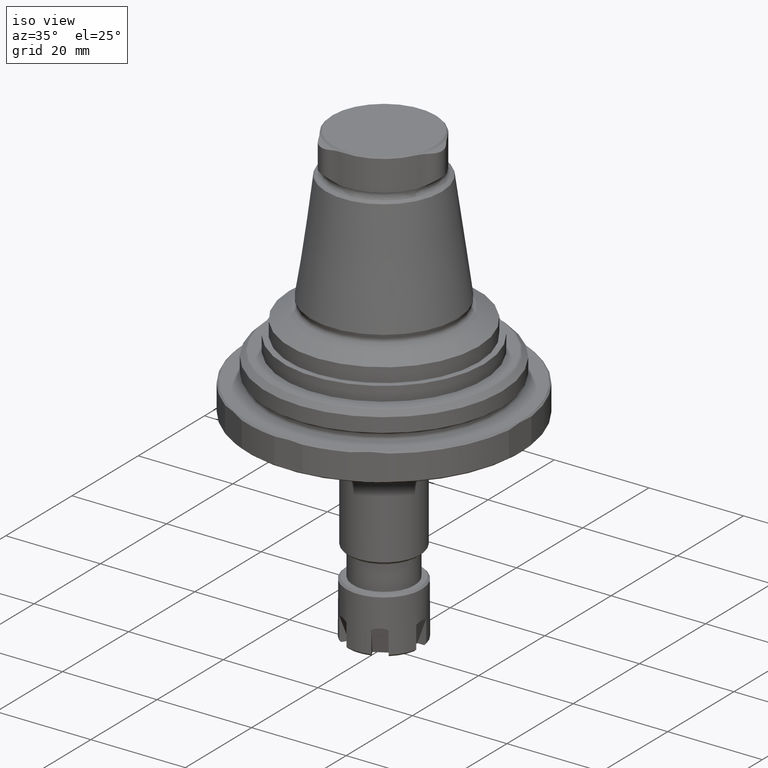
[diagram: clean part render]
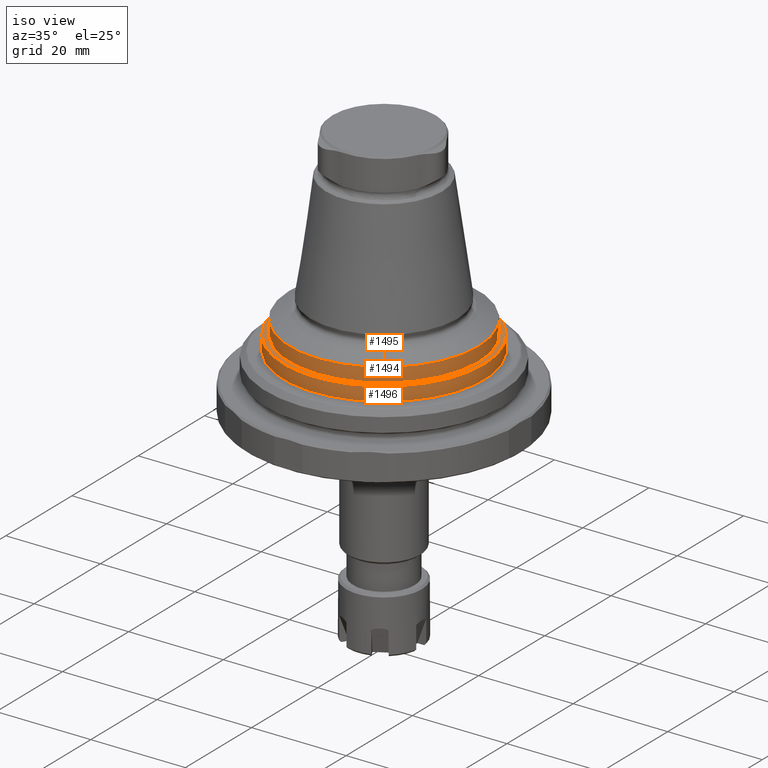
[diagram: same view with one multi-face feature highlighted, each face labeled with its STEP entity id]
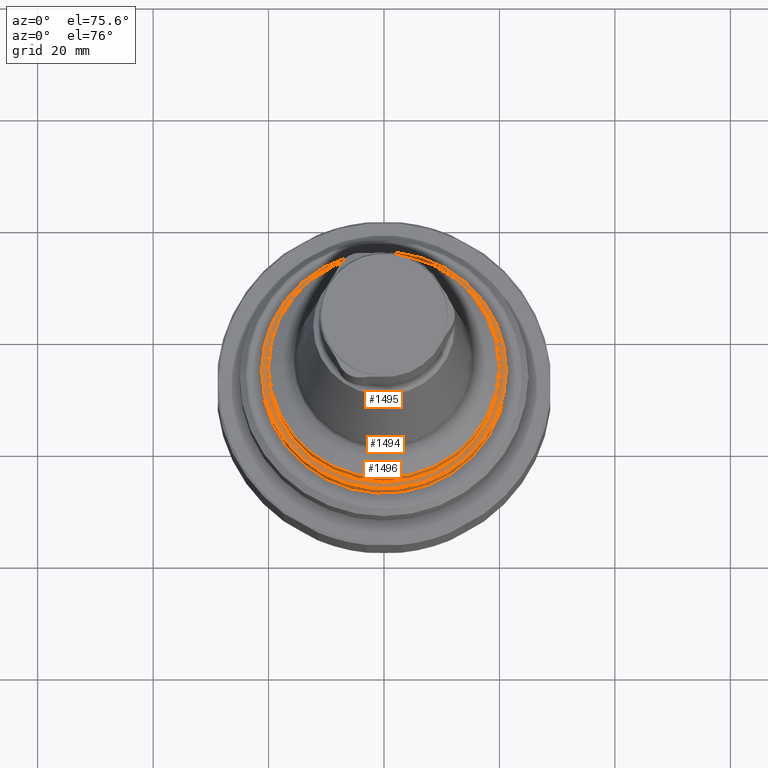
[diagram: same view with one multi-face feature highlighted, each face labeled with its STEP entity id]
A machine part, iso view. The highlighted faces form ONE feature: a stepped (counterbored) hole: 2 coaxial cylindrical walls of radii 20 -> 21.2 mm joined by 1 annular planar shoulder face(s). The faces share edges in the B-rep.
A second angle (auxiliary view) of the same feature is appended — it is thin or edge-on in the first view.
Their STEP definitions:
[1] entity #1496 (Cylinder):
#242=CYLINDRICAL_SURFACE('',#1659,21.2);
#560=ORIENTED_EDGE('',*,*,#831,.T.);
#561=ORIENTED_EDGE('',*,*,#832,.T.);
#831=EDGE_CURVE('',#994,#994,#1087,.T.);
#832=EDGE_CURVE('',#995,#995,#1088,.T.);
#994=VERTEX_POINT('',#2580);
#995=VERTEX_POINT('',#2583);
#1087=CIRCLE('',#1658,21.2);
#1088=CIRCLE('',#1660,21.2);
#1205=EDGE_LOOP('',(#560));
#1206=EDGE_LOOP('',(#561));
#1343=FACE_BOUND('',#1205,.T.);
#1344=FACE_BOUND('',#1206,.T.);
#1496=ADVANCED_FACE('',(#1343,#1344),#242,.T.);
#1658=AXIS2_PLACEMENT_3D('',#2579,#2010,#2011);
#1659=AXIS2_PLACEMENT_3D('',#2581,#2012,#2013);
#1660=AXIS2_PLACEMENT_3D('',#2582,#2014,#2015);
#2010=DIRECTION('',(1.06830816923893E-16,-5.86246862035713E-17,-1.));
#2011=DIRECTION('',(1.,-6.12303176911188E-17,1.0683081361517E-16));
#2012=DIRECTION('',(-1.06830816923893E-16,-2.60563148754756E-18,1.));
#2013=DIRECTION('',(-1.,6.12303176911188E-17,-1.0683081361517E-16));
#2014=DIRECTION('',(-1.06830816923893E-16,-6.38359491786664E-17,1.));
#2015=DIRECTION('',(-1.,6.12303176911188E-17,-1.0683081361517E-16));
#2579=CARTESIAN_POINT('',(4.55024333403639E-15,-9.1197102064168E-18,7.99999999999999));
#2580=CARTESIAN_POINT('',(21.2,-1.30720244525814E-15,7.99999999999999));
#2581=CARTESIAN_POINT('',(4.71048955942223E-15,-5.21126297509546E-18,6.49999999999999));
#2582=CARTESIAN_POINT('',(4.87073578480807E-15,-1.30281574377412E-18,4.99999999999999));
#2583=CARTESIAN_POINT('',(-21.2,1.29677991930795E-15,4.99999999999999));
[2] entity #1494 (Cylinder):
#241=CYLINDRICAL_SURFACE('',#1655,20.);
#556=ORIENTED_EDGE('',*,*,#829,.T.);
#557=ORIENTED_EDGE('',*,*,#830,.F.);
#829=EDGE_CURVE('',#992,#992,#1085,.T.);
#830=EDGE_CURVE('',#993,#993,#1086,.T.);
#992=VERTEX_POINT('',#2574);
#993=VERTEX_POINT('',#2577);
#1085=CIRCLE('',#1654,20.);
#1086=CIRCLE('',#1656,20.);
#1201=EDGE_LOOP('',(#556));
#1202=EDGE_LOOP('',(#557));
#1339=FACE_BOUND('',#1201,.T.);
#1340=FACE_BOUND('',#1202,.T.);
#1494=ADVANCED_FACE('',(#1339,#1340),#241,.T.);
#1654=AXIS2_PLACEMENT_3D('',#2573,#2002,#2003);
#1655=AXIS2_PLACEMENT_3D('',#2575,#2004,#2005);
#1656=AXIS2_PLACEMENT_3D('',#2576,#2006,#2007);
#2002=DIRECTION('',(2.49783760049311E-16,-7.79579225983867E-33,-1.));
#2003=DIRECTION('',(-1.,6.12303176911188E-17,-2.49783760049311E-16));
#2004=DIRECTION('',(2.49783760049311E-16,-7.79579225983867E-33,-1.));
#2005=DIRECTION('',(-1.,6.12303176911188E-17,-2.49783760049311E-16));
#2006=DIRECTION('',(2.49783760049311E-16,-7.79579225983867E-33,-1.));
#2007=DIRECTION('',(-1.,6.12303176911188E-17,-2.49783760049311E-16));
#2573=CARTESIAN_POINT('',(3.29953993680401E-15,-2.84546417484111E-31,11.0040707856479));
#2574=CARTESIAN_POINT('',(-20.,1.22460635382238E-15,11.0040707856479));
#2575=CARTESIAN_POINT('',(-5.81756730499582E-15,-5.39348247959157E-63,47.5040707856479));
#2576=CARTESIAN_POINT('',(4.04990803309743E-15,-3.07965529262873E-31,7.99999999999999));
#2577=CARTESIAN_POINT('',(-20.,1.22460635382238E-15,7.99999999999999));
[3] entity #1495 (Plane):
#558=ORIENTED_EDGE('',*,*,#831,.F.);
#559=ORIENTED_EDGE('',*,*,#830,.T.);
#830=EDGE_CURVE('',#993,#993,#1086,.T.);
#831=EDGE_CURVE('',#994,#994,#1087,.T.);
#993=VERTEX_POINT('',#2577);
#994=VERTEX_POINT('',#2580);
#1086=CIRCLE('',#1656,20.);
#1087=CIRCLE('',#1658,21.2);
#1203=EDGE_LOOP('',(#558));
#1204=EDGE_LOOP('',(#559));
#1341=FACE_BOUND('',#1203,.T.);
#1342=FACE_BOUND('',#1204,.T.);
#1419=PLANE('',#1657);
#1495=ADVANCED_FACE('',(#1341,#1342),#1419,.T.);
#1656=AXIS2_PLACEMENT_3D('',#2576,#2006,#2007);
#1657=AXIS2_PLACEMENT_3D('',#2578,#2008,#2009);
#1658=AXIS2_PLACEMENT_3D('',#2579,#2010,#2011);
#2006=DIRECTION('',(2.49783760049311E-16,-7.79579225983867E-33,-1.));
#2007=DIRECTION('',(-1.,6.12303176911188E-17,-2.49783760049311E-16));
#2008=DIRECTION('',(-1.06830816923893E-16,5.86246862035713E-17,1.));
#2009=DIRECTION('',(-6.12303176911189E-17,-1.,5.86246862035713E-17));
#2010=DIRECTION('',(1.06830816923893E-16,-5.86246862035713E-17,-1.));
#2011=DIRECTION('',(1.,-6.12303176911188E-17,1.0683081361517E-16));
#2576=CARTESIAN_POINT('',(4.04990803309743E-15,-3.07965529262873E-31,7.99999999999999));
#2577=CARTESIAN_POINT('',(-20.,1.22460635382238E-15,7.99999999999999));
#2578=CARTESIAN_POINT('',(4.55024333403639E-15,-9.1197102064168E-18,7.99999999999999));
#2579=CARTESIAN_POINT('',(4.55024333403639E-15,-9.1197102064168E-18,7.99999999999999));
#2580=CARTESIAN_POINT('',(21.2,-1.30720244525814E-15,7.99999999999999));